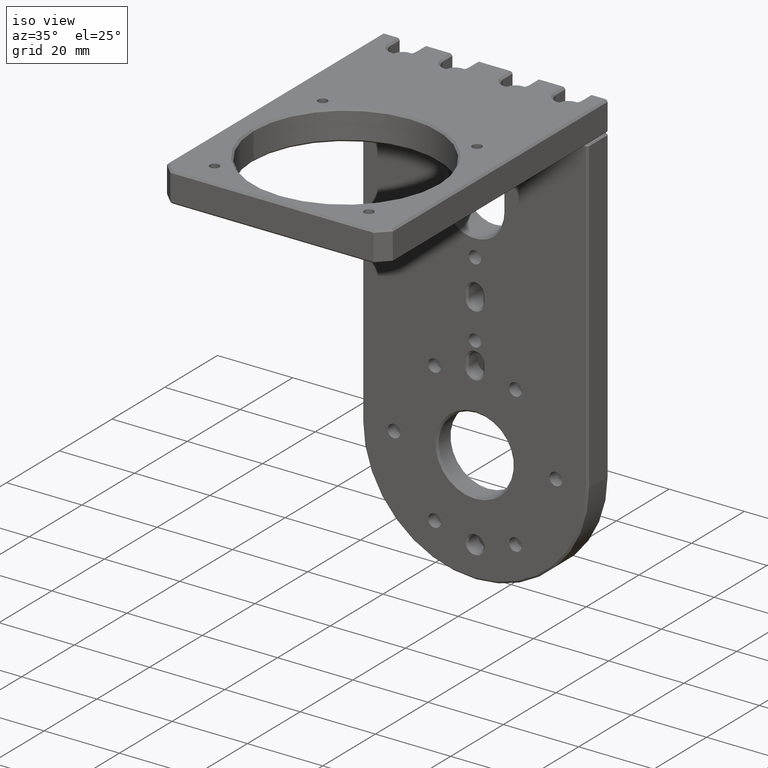
[diagram: clean part render]
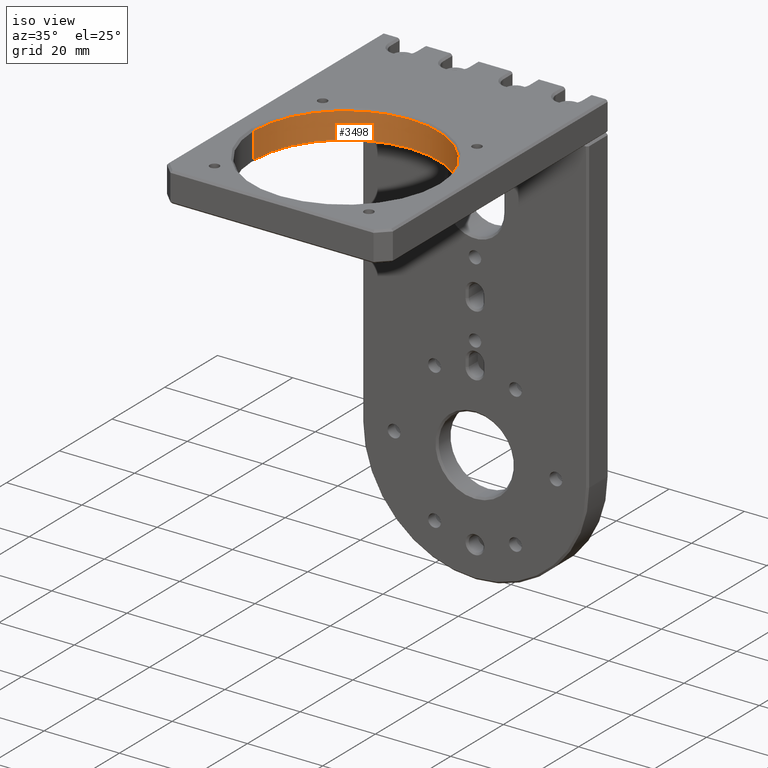
[diagram: same view with one face highlighted and labeled with its STEP entity id]
A machine part, iso view. The second image highlights one B-rep face of the part: STEP entity #3498.
In plain terms, the highlighted cylindrical surface (partial cylindrical patch) has radius 24.5 mm, axis along (-0, -0, -1).
Its self-contained STEP definition (entity closure, byte-faithful):
#121 = AXIS2_PLACEMENT_3D ( 'NONE', #3514, #5971, #3994 ) ;
#495 = CARTESIAN_POINT ( 'NONE',  ( 110.6860777088444507, 84.21818400015608574, 193.4764618752686545 ) ) ;
#703 = EDGE_CURVE ( 'NONE', #1866, #2916, #1170, .T. ) ;
#1036 = DIRECTION ( 'NONE',  ( -1.000000000000000000, 0.0000000000000000000, 0.0000000000000000000 ) ) ;
#1170 = CIRCLE ( 'NONE', #2837, 24.49999999999999289 ) ;
#1242 = CARTESIAN_POINT ( 'NONE',  ( 159.6860777088444365, 84.21818400015608574, 193.4764618752686545 ) ) ;
#1531 = CARTESIAN_POINT ( 'NONE',  ( 110.6860777088444507, 84.21818400015608574, 186.4764618752686545 ) ) ;
#1635 = EDGE_CURVE ( 'NONE', #5186, #1866, #7809, .T. ) ;
#1704 = CARTESIAN_POINT ( 'NONE',  ( 110.6860777088444507, 84.21818400015608574, 193.9764618752686545 ) ) ;
#1854 = AXIS2_PLACEMENT_3D ( 'NONE', #7664, #3438, #1036 ) ;
#1866 = VERTEX_POINT ( 'NONE', #1531 ) ;
#2047 = DIRECTION ( 'NONE',  ( -0.0000000000000000000, -0.0000000000000000000, -1.000000000000000000 ) ) ;
#2248 = CYLINDRICAL_SURFACE ( 'NONE', #1854, 24.49999999999999289 ) ;
#2649 = LINE ( 'NONE', #7548, #6275 ) ;
#2837 = AXIS2_PLACEMENT_3D ( 'NONE', #3523, #7344, #6137 ) ;
#2866 = DIRECTION ( 'NONE',  ( -0.0000000000000000000, -0.0000000000000000000, -1.000000000000000000 ) ) ;
#2916 = VERTEX_POINT ( 'NONE', #5095 ) ;
#3034 = EDGE_LOOP ( 'NONE', ( #4562, #7527, #7098, #6196 ) ) ;
#3438 = DIRECTION ( 'NONE',  ( -0.0000000000000000000, -0.0000000000000000000, -1.000000000000000000 ) ) ;
#3498 = ADVANCED_FACE ( 'NONE', ( #7710 ), #2248, .F. ) ;
#3514 = CARTESIAN_POINT ( 'NONE',  ( 135.1860777088444365, 84.21818400015608574, 193.4764618752686545 ) ) ;
#3523 = CARTESIAN_POINT ( 'NONE',  ( 135.1860777088444365, 84.21818400015608574, 186.4764618752686545 ) ) ;
#3994 = DIRECTION ( 'NONE',  ( -1.000000000000000000, 0.0000000000000000000, 0.0000000000000000000 ) ) ;
#4417 = VERTEX_POINT ( 'NONE', #1242 ) ;
#4418 = VECTOR ( 'NONE', #2866, 1000.000000000000000 ) ;
#4562 = ORIENTED_EDGE ( 'NONE', *, *, #4683, .F. ) ;
#4683 = EDGE_CURVE ( 'NONE', #4417, #2916, #2649, .T. ) ;
#5095 = CARTESIAN_POINT ( 'NONE',  ( 159.6860777088444365, 84.21818400015608574, 186.4764618752686545 ) ) ;
#5186 = VERTEX_POINT ( 'NONE', #495 ) ;
#5971 = DIRECTION ( 'NONE',  ( 0.0000000000000000000, 0.0000000000000000000, 1.000000000000000000 ) ) ;
#6137 = DIRECTION ( 'NONE',  ( -1.000000000000000000, 0.0000000000000000000, 0.0000000000000000000 ) ) ;
#6196 = ORIENTED_EDGE ( 'NONE', *, *, #703, .T. ) ;
#6275 = VECTOR ( 'NONE', #2047, 1000.000000000000000 ) ;
#6678 = EDGE_CURVE ( 'NONE', #4417, #5186, #7316, .T. ) ;
#7098 = ORIENTED_EDGE ( 'NONE', *, *, #1635, .T. ) ;
#7316 = CIRCLE ( 'NONE', #121, 24.49999999999999289 ) ;
#7344 = DIRECTION ( 'NONE',  ( -0.0000000000000000000, -0.0000000000000000000, -1.000000000000000000 ) ) ;
#7527 = ORIENTED_EDGE ( 'NONE', *, *, #6678, .T. ) ;
#7548 = CARTESIAN_POINT ( 'NONE',  ( 159.6860777088444365, 84.21818400015608574, 193.9764618752686545 ) ) ;
#7664 = CARTESIAN_POINT ( 'NONE',  ( 135.1860777088444365, 84.21818400015608574, 193.9764618752686545 ) ) ;
#7710 = FACE_OUTER_BOUND ( 'NONE', #3034, .T. ) ;
#7809 = LINE ( 'NONE', #1704, #4418 ) ;